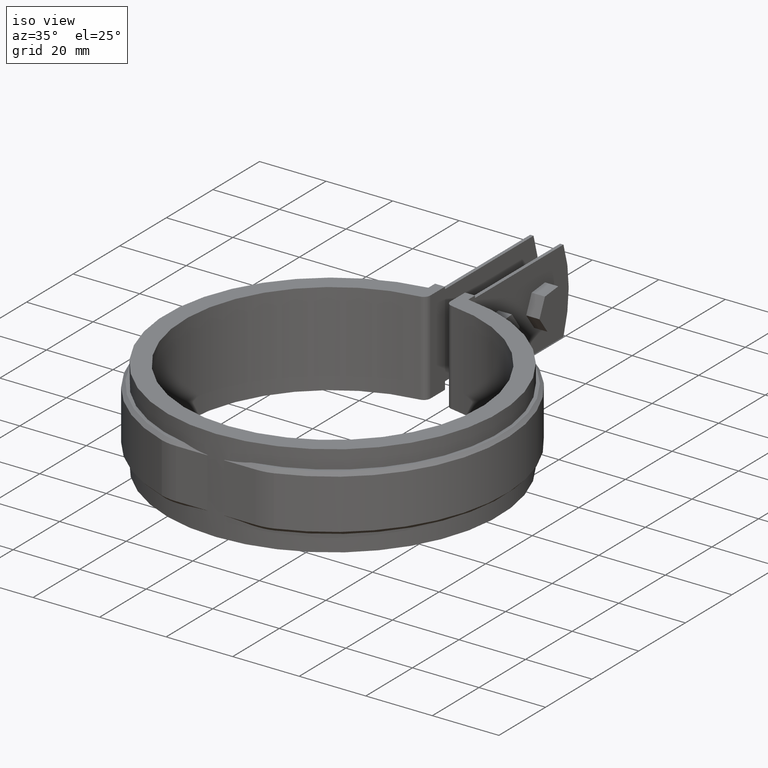
[diagram: clean part render]
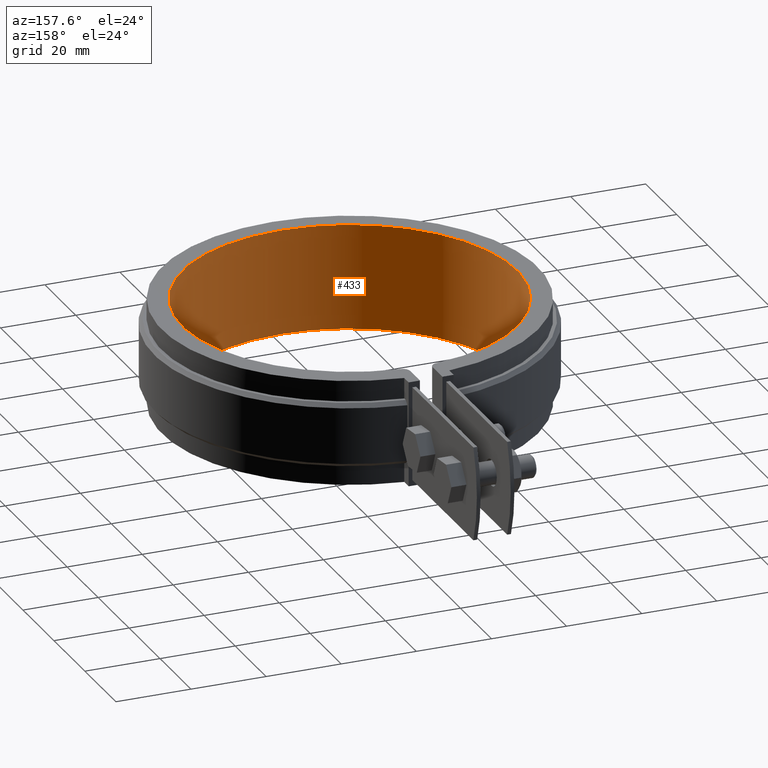
[diagram: tour spotlight — one face highlighted and labeled with its STEP entity id]
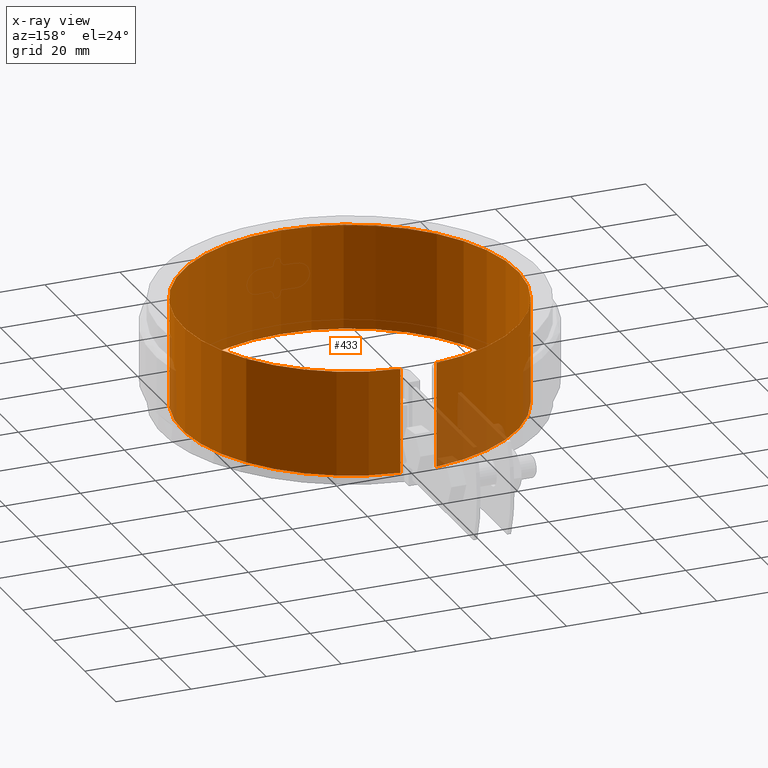
[diagram: x-ray of the same camera — body ghosted, this tour face saturated]
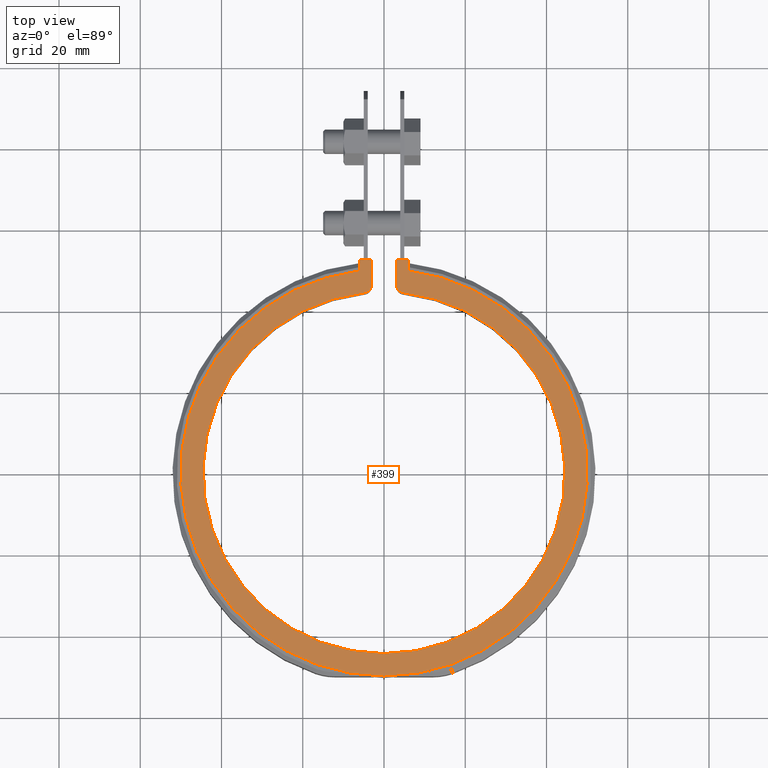
[diagram: tour spotlight — one face highlighted and labeled with its STEP entity id]
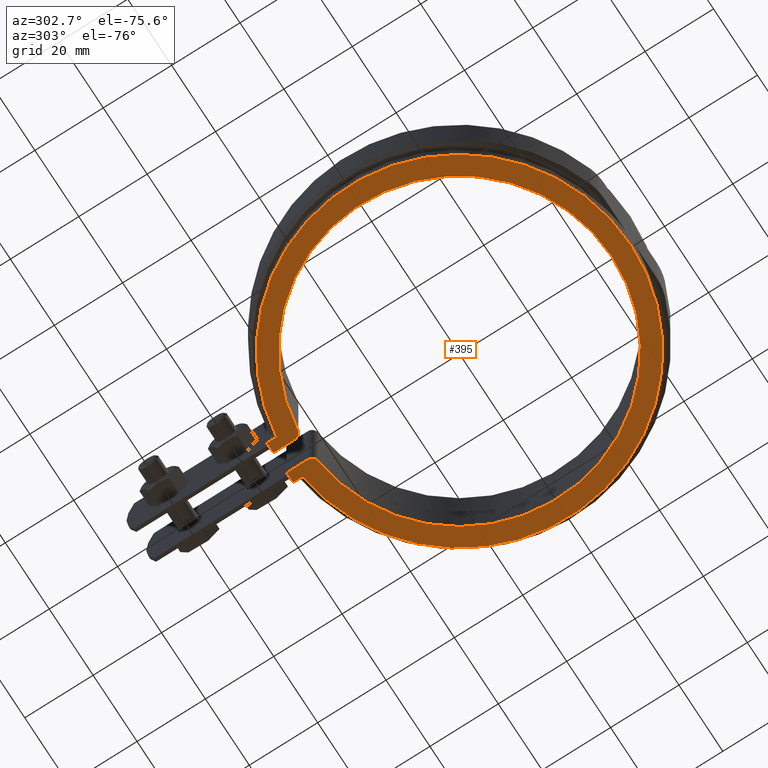
[diagram: tour spotlight — one face highlighted and labeled with its STEP entity id]
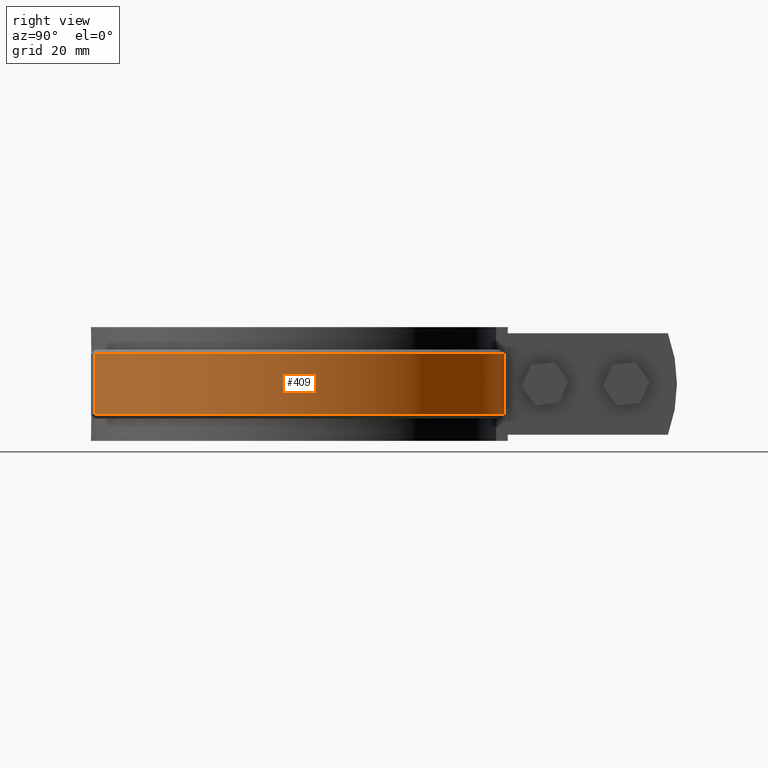
[diagram: tour spotlight — one face highlighted and labeled with its STEP entity id]
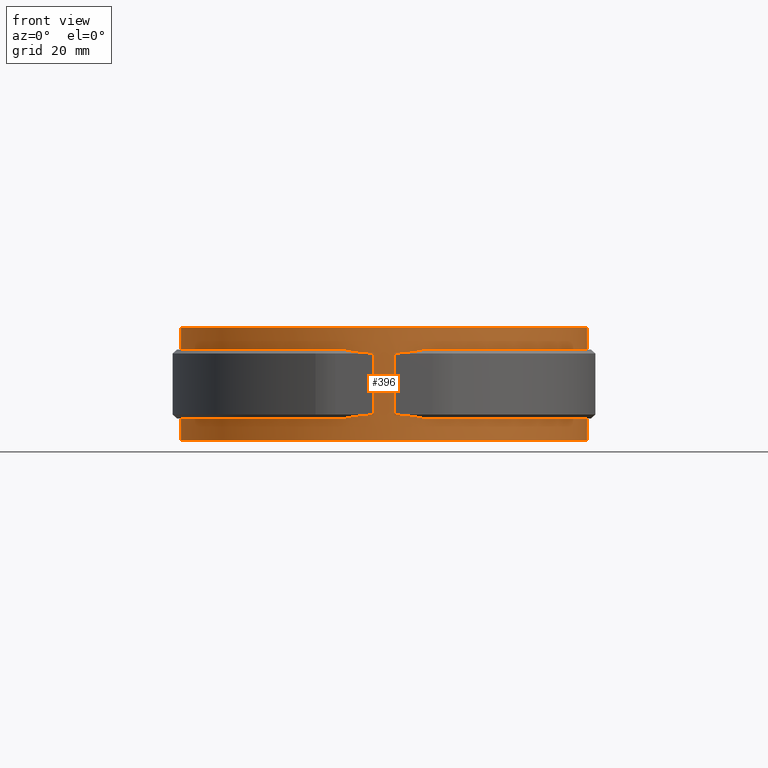
[diagram: tour spotlight — one face highlighted and labeled with its STEP entity id]
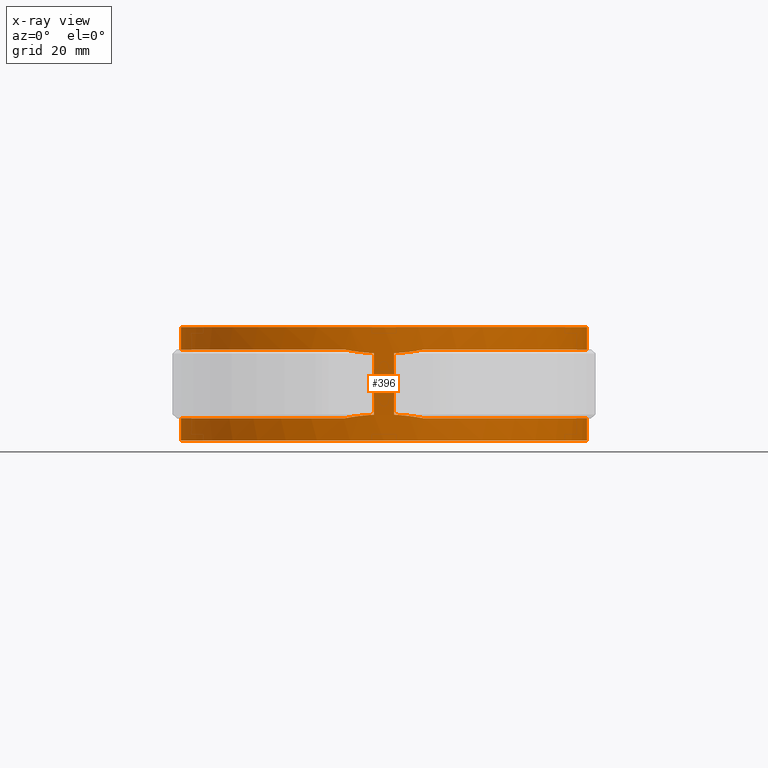
[diagram: x-ray of the same camera — body ghosted, this tour face saturated]
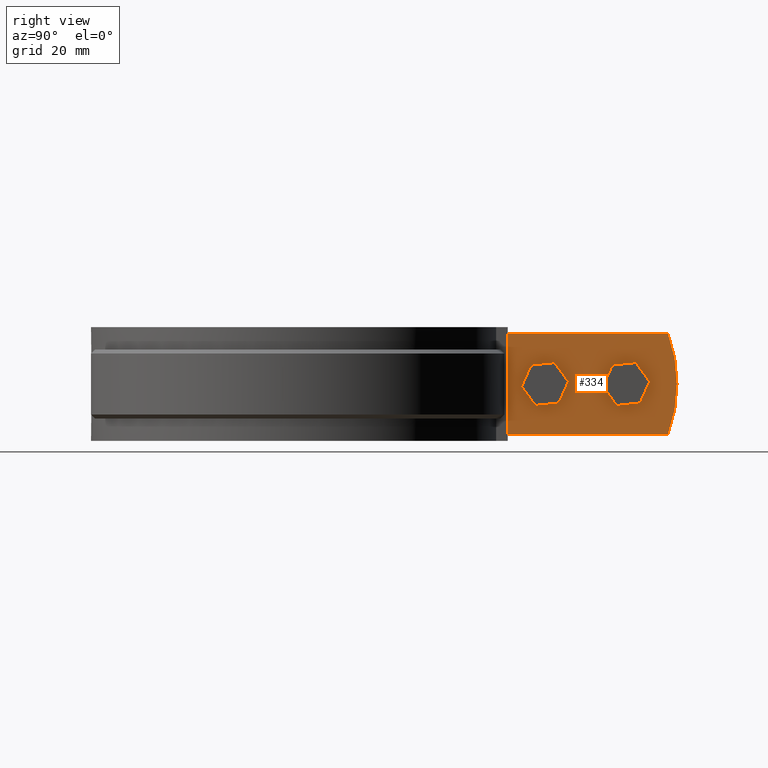
[diagram: tour spotlight — one face highlighted and labeled with its STEP entity id]
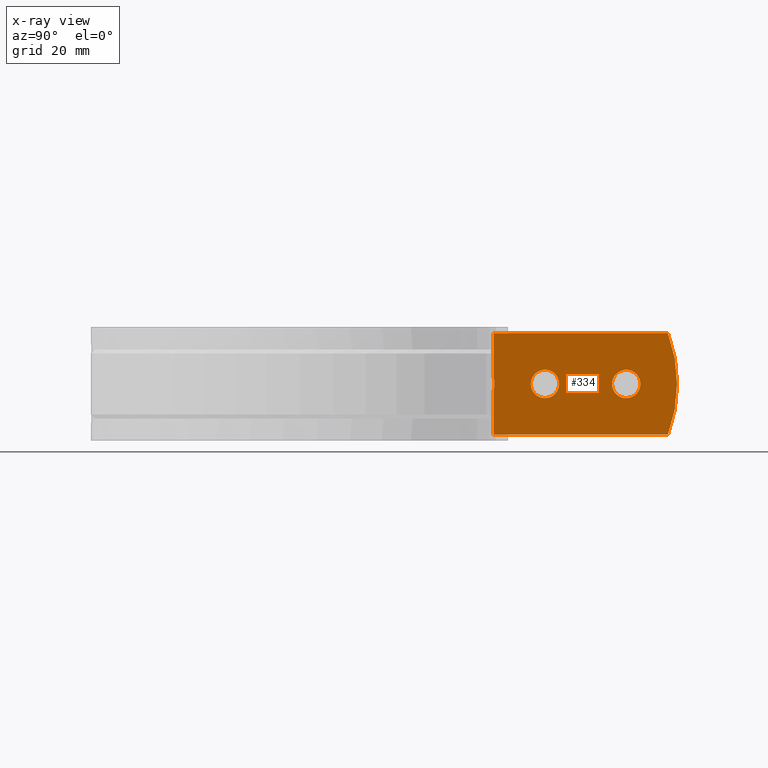
[diagram: x-ray of the same camera — body ghosted, this tour face saturated]
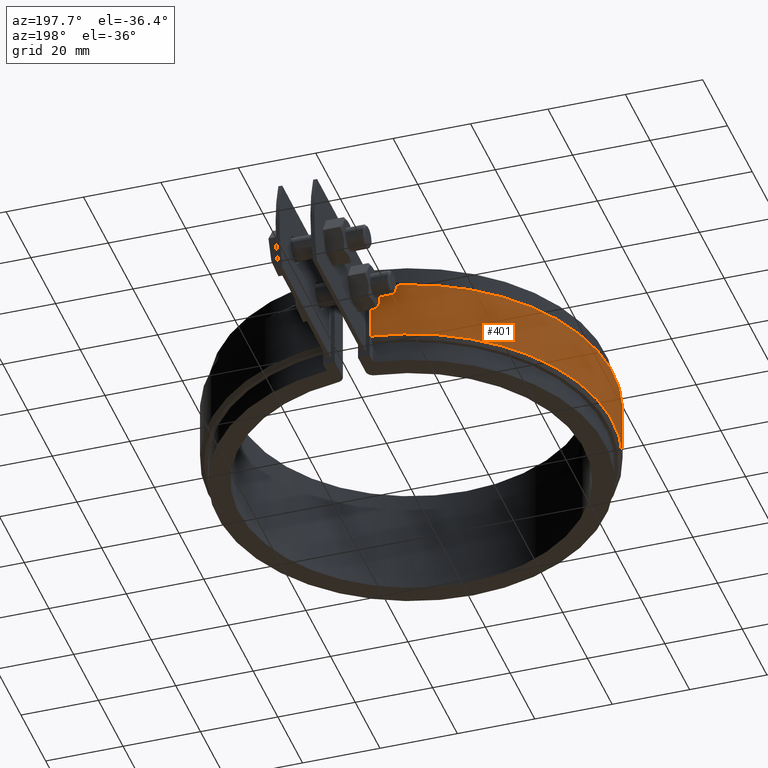
[diagram: tour spotlight — one face highlighted and labeled with its STEP entity id]
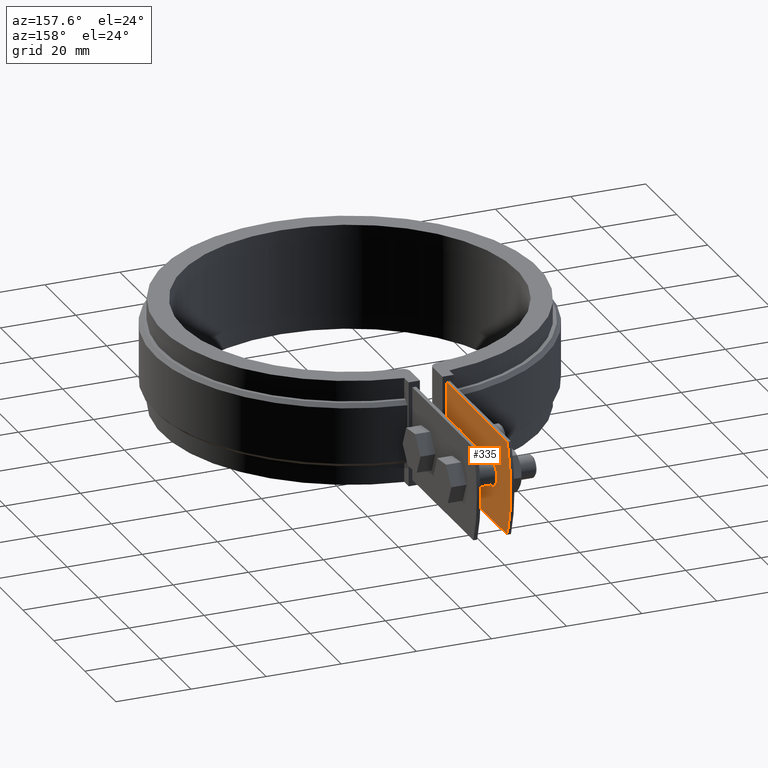
[diagram: tour spotlight — one face highlighted and labeled with its STEP entity id]
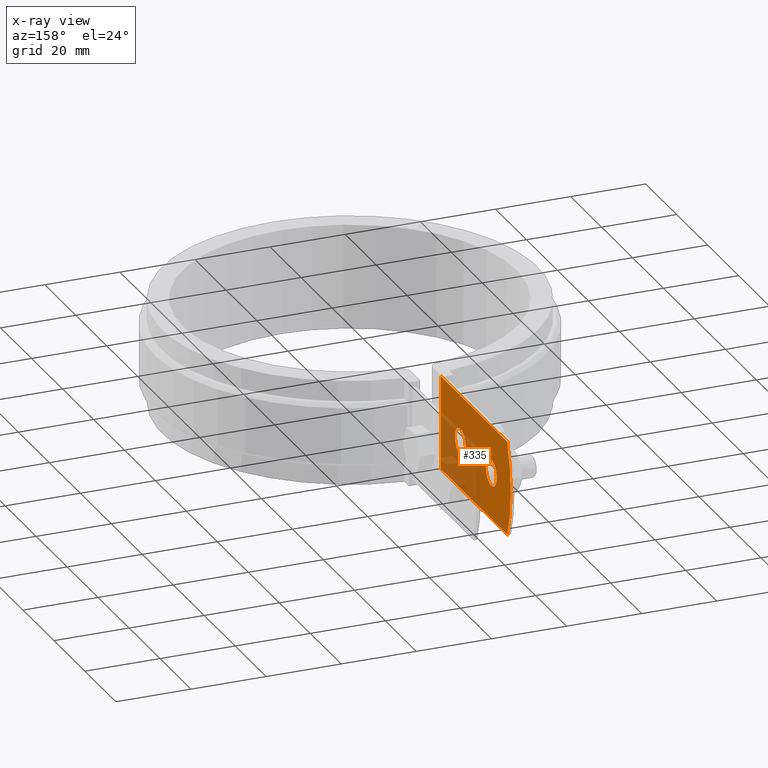
[diagram: x-ray of the same camera — body ghosted, this tour face saturated]
A machine part: a face-by-face anatomy tour. The part has 190 B-rep faces; the first image is the clean iso view, then the 8 largest visible faces are spotlighted one at a time (largest first), each with its STEP entity span.

Face 1 — auxiliary view, entity #433. An x-ray twin of the same camera follows (body ghosted, this face saturated) — the face is partly hidden behind the body. In plain terms, the highlighted cylindrical surface (partial cylindrical patch) has radius 44.55 mm, axis along (0, 0, 1).
Definition (entity closure, byte-faithful):
#433 = ADVANCED_FACE( '', ( #760 ), #761, .F. );
#760 = FACE_OUTER_BOUND( '', #1736, .T. );
#761 = CYLINDRICAL_SURFACE( '', #1737, 44.5500000000000 );
#1736 = EDGE_LOOP( '', ( #3486, #3487, #3488, #3489 ) );
#1737 = AXIS2_PLACEMENT_3D( '', #3490, #3491, #3492 );
#3486 = ORIENTED_EDGE( '', *, *, #4289, .T. );
#3487 = ORIENTED_EDGE( '', *, *, #4356, .F. );
#3488 = ORIENTED_EDGE( '', *, *, #4314, .F. );
#3489 = ORIENTED_EDGE( '', *, *, #4216, .T. );
#3490 = CARTESIAN_POINT( '', ( 8.67361737988404E-016, 1.38777878078145E-014, 14.0000000000000 ) );
#3491 = DIRECTION( '', ( 0.000000000000000, 0.000000000000000, 1.00000000000000 ) );
#3492 = DIRECTION( '', ( 0.107411385606873, 0.994214662053428, 0.000000000000000 ) );
#4216 = EDGE_CURVE( '', #4869, #4867, #4870, .T. );
#4289 = EDGE_CURVE( '', #4867, #4988, #4990, .T. );
#4314 = EDGE_CURVE( '', #4869, #5029, #5030, .T. );
#4356 = EDGE_CURVE( '', #5029, #4988, #5084, .T. );
#4867 = VERTEX_POINT( '', #7353 );
#4869 = VERTEX_POINT( '', #7355 );
#4870 = LINE( '', #7356, #7357 );
#4988 = VERTEX_POINT( '', #7644 );
#4990 = CIRCLE( '', #7646, 44.5500000000000 );
#5029 = VERTEX_POINT( '', #7708 );
#5030 = CIRCLE( '', #7709, 44.5500000000000 );
#5084 = LINE( '', #7790, #7791 );
#7353 = CARTESIAN_POINT( '', ( 4.78517722878625, 44.2922631944802, -14.0000000000000 ) );
#7355 = CARTESIAN_POINT( '', ( 4.78517722878625, 44.2922631944802, 14.0000000000000 ) );
#7356 = CARTESIAN_POINT( '', ( 4.78517722878625, 44.2922631944802, 14.0000000000000 ) );
#7357 = VECTOR( '', #8482, 1000.00000000000 );
#7644 = CARTESIAN_POINT( '', ( -4.78517722878559, 44.2922631944803, -14.0000000000000 ) );
#7646 = AXIS2_PLACEMENT_3D( '', #8554, #8555, #8556 );
#7708 = CARTESIAN_POINT( '', ( -4.78517722878559, 44.2922631944803, 14.0000000000000 ) );
#7709 = AXIS2_PLACEMENT_3D( '', #8592, #8593, #8594 );
#7790 = CARTESIAN_POINT( '', ( -4.78517722878559, 44.2922631944803, 14.0000000000000 ) );
#7791 = VECTOR( '', #8664, 1000.00000000000 );
#8482 = DIRECTION( '', ( 0.000000000000000, 0.000000000000000, -1.00000000000000 ) );
#8554 = CARTESIAN_POINT( '', ( 8.67361737988404E-016, 1.38777878078145E-014, -14.0000000000000 ) );
#8555 = DIRECTION( '', ( 0.000000000000000, 0.000000000000000, -1.00000000000000 ) );
#8556 = DIRECTION( '', ( 1.00000000000000, 1.38777878078145E-017, 0.000000000000000 ) );
#8592 = CARTESIAN_POINT( '', ( 8.67361737988404E-016, 1.38777878078145E-014, 14.0000000000000 ) );
#8593 = DIRECTION( '', ( 0.000000000000000, 0.000000000000000, -1.00000000000000 ) );
#8594 = DIRECTION( '', ( 1.00000000000000, 1.38777878078145E-017, 0.000000000000000 ) );
#8664 = DIRECTION( '', ( 0.000000000000000, 0.000000000000000, -1.00000000000000 ) );

Face 2 — top view, entity #399. In plain terms, the highlighted planar face has unit normal (0, 0, 1).
Definition (entity closure, byte-faithful):
#399 = ADVANCED_FACE( '', ( #692 ), #693, .T. );
#692 = FACE_OUTER_BOUND( '', #1664, .T. );
#693 = PLANE( '', #1665 );
#1664 = EDGE_LOOP( '', ( #3180, #3181, #3182, #3183, #3184, #3185, #3186, #3187, #3188, #3189 ) );
#1665 = AXIS2_PLACEMENT_3D( '', #3190, #3191, #3192 );
#3180 = ORIENTED_EDGE( '', *, *, #4312, .T. );
#3181 = ORIENTED_EDGE( '', *, *, #4279, .F. );
#3182 = ORIENTED_EDGE( '', *, *, #4311, .F. );
#3183 = ORIENTED_EDGE( '', *, *, #4294, .F. );
#3184 = ORIENTED_EDGE( '', *, *, #4302, .F. );
#3185 = ORIENTED_EDGE( '', *, *, #4272, .F. );
#3186 = ORIENTED_EDGE( '', *, *, #4313, .T. );
#3187 = ORIENTED_EDGE( '', *, *, #4217, .T. );
#3188 = ORIENTED_EDGE( '', *, *, #4314, .T. );
#3189 = ORIENTED_EDGE( '', *, *, #4315, .T. );
#3190 = CARTESIAN_POINT( '', ( -5.24038012570140, 48.1024067066612, 14.0000000000000 ) );
#3191 = DIRECTION( '', ( 0.000000000000000, 0.000000000000000, 1.00000000000000 ) );
#3192 = DIRECTION( '', ( -0.141271445606700, 0.989970897883465, 0.000000000000000 ) );
#4217 = EDGE_CURVE( '', #4871, #4869, #4872, .T. );
#4272 = EDGE_CURVE( '', #4958, #4961, #4962, .T. );
#4279 = EDGE_CURVE( '', #4972, #4973, #4974, .T. );
#4294 = EDGE_CURVE( '', #4996, #4998, #4999, .T. );
#4302 = EDGE_CURVE( '', #4961, #4996, #5011, .T. );
#4311 = EDGE_CURVE( '', #4998, #4972, #5025, .T. );
#4312 = EDGE_CURVE( '', #5026, #4973, #5027, .T. );
#4313 = EDGE_CURVE( '', #4958, #4871, #5028, .T. );
#4314 = EDGE_CURVE( '', #4869, #5029, #5030, .T. );
#4315 = EDGE_CURVE( '', #5029, #5026, #5031, .T. );
#4869 = VERTEX_POINT( '', #7355 );
#4871 = VERTEX_POINT( '', #7358 );
#4872 = CIRCLE( '', #7359, 2.00000000000000 );
#4958 = VERTEX_POINT( '', #7598 );
#4961 = VERTEX_POINT( '', #7602 );
#4962 = LINE( '', #7603, #7604 );
#4972 = VERTEX_POINT( '', #7620 );
#4973 = VERTEX_POINT( '', #7621 );
#4974 = LINE( '', #7622, #7623 );
#4996 = VERTEX_POINT( '', #7652 );
#4998 = VERTEX_POINT( '', #7655 );
#4999 = CIRCLE( '', #7656, 50.0500000000000 );
#5011 = LINE( '', #7672, #7673 );
#5025 = LINE( '', #7701, #7702 );
#5026 = VERTEX_POINT( '', #7703 );
#5027 = LINE( '', #7704, #7705 );
#5028 = LINE( '', #7706, #7707 );
#5029 = VERTEX_POINT( '', #7708 );
#5030 = CIRCLE( '', #7709, 44.5500000000000 );
#5031 = CIRCLE( '', #7710, 2.00000000000000 );
#7355 = CARTESIAN_POINT( '', ( 4.78517722878625, 44.2922631944802, 14.0000000000000 ) );
#7358 = CARTESIAN_POINT( '', ( 2.99999999999999, 46.2806925185870, 14.0000000000000 ) );
#7359 = AXIS2_PLACEMENT_3D( '', #8483, #8484, #8485 );
#7598 = CARTESIAN_POINT( '', ( 2.99999999999999, 52.5500000000000, 14.0000000000000 ) );
#7602 = CARTESIAN_POINT( '', ( 6.00000000000000, 52.5500000000000, 14.0000000000000 ) );
#7603 = CARTESIAN_POINT( '', ( 5.00000000000001, 52.5500000000000, 14.0000000000000 ) );
#7604 = VECTOR( '', #8533, 1000.00000000000 );
#7620 = CARTESIAN_POINT( '', ( -6.00000000000000, 52.5500000000000, 14.0000000000000 ) );
#7621 = CARTESIAN_POINT( '', ( -2.99999999999934, 52.5500000000000, 14.0000000000000 ) );
#7622 = CARTESIAN_POINT( '', ( -6.00000000000001, 52.5500000000000, 14.0000000000000 ) );
#7623 = VECTOR( '', #8540, 1000.00000000000 );
#7652 = CARTESIAN_POINT( '', ( 6.00000000000001, 49.6890581516696, 14.0000000000000 ) );
#7655 = CARTESIAN_POINT( '', ( -6.00000000000003, 49.6890581516696, 14.0000000000000 ) );
#7656 = AXIS2_PLACEMENT_3D( '', #8567, #8568, #8569 );
#7672 = CARTESIAN_POINT( '', ( 6.00000000000001, 52.5500000000000, 14.0000000000000 ) );
#7673 = VECTOR( '', #8583, 1000.00000000000 );
#7701 = CARTESIAN_POINT( '', ( -6.00000000000000, 49.6890581516696, 14.0000000000000 ) );
#7702 = VECTOR( '', #8589, 1000.00000000000 );
#7703 = CARTESIAN_POINT( '', ( -2.99999999999934, 46.2806925185871, 14.0000000000000 ) );
#7704 = CARTESIAN_POINT( '', ( -2.99999999999934, 46.2806925185871, 14.0000000000000 ) );
#7705 = VECTOR( '', #8590, 1000.00000000000 );
#7706 = CARTESIAN_POINT( '', ( 2.99999999999999, 52.5500000000000, 14.0000000000000 ) );
#7707 = VECTOR( '', #8591, 1000.00000000000 );
#7708 = CARTESIAN_POINT( '', ( -4.78517722878559, 44.2922631944803, 14.0000000000000 ) );
#7709 = AXIS2_PLACEMENT_3D( '', #8592, #8593, #8594 );
#7710 = AXIS2_PLACEMENT_3D( '', #8595, #8596, #8597 );
#8483 = CARTESIAN_POINT( '', ( 5.00000000000000, 46.2806925185871, 14.0000000000000 ) );
#8484 = DIRECTION( '', ( 0.000000000000000, 0.000000000000000, 1.00000000000000 ) );
#8485 = DIRECTION( '', ( -1.00000000000000, -1.16573417585641E-015, 0.000000000000000 ) );
#8533 = DIRECTION( '', ( 1.00000000000000, 2.77555756156289E-017, 0.000000000000000 ) );
#8540 = DIRECTION( '', ( 1.00000000000000, 2.77555756156289E-017, 0.000000000000000 ) );
#8567 = CARTESIAN_POINT( '', ( 1.73472347597681E-015, -1.38777878078145E-014, 14.0000000000000 ) );
#8568 = DIRECTION( '', ( 0.000000000000000, 0.000000000000000, -1.00000000000000 ) );
#8569 = DIRECTION( '', ( 1.00000000000000, 2.77555756156289E-017, 0.000000000000000 ) );
#8583 = DIRECTION( '', ( -5.55111512312578E-017, -1.00000000000000, 0.000000000000000 ) );
#8589 = DIRECTION( '', ( 5.55111512312578E-017, 1.00000000000000, 0.000000000000000 ) );
#8590 = DIRECTION( '', ( 4.16333634234434E-017, 1.00000000000000, 0.000000000000000 ) );
#8591 = DIRECTION( '', ( -4.16333634234434E-017, -1.00000000000000, 0.000000000000000 ) );
#8592 = CARTESIAN_POINT( '', ( 8.67361737988404E-016, 1.38777878078145E-014, 14.0000000000000 ) );
#8593 = DIRECTION( '', ( 0.000000000000000, 0.000000000000000, -1.00000000000000 ) );
#8594 = DIRECTION( '', ( 1.00000000000000, 1.38777878078145E-017, 0.000000000000000 ) );
#8595 = CARTESIAN_POINT( '', ( -4.99999999999933, 46.2806925185871, 14.0000000000000 ) );
#8596 = DIRECTION( '', ( 0.000000000000000, 0.000000000000000, 1.00000000000000 ) );
#8597 = DIRECTION( '', ( 1.00000000000000, 1.34614541735800E-015, 0.000000000000000 ) );

Face 3 — auxiliary view, entity #395. In plain terms, the highlighted planar face has unit normal (0, 0, 1).
Definition (entity closure, byte-faithful):
#395 = ADVANCED_FACE( '', ( #684 ), #685, .F. );
#684 = FACE_OUTER_BOUND( '', #1656, .T. );
#685 = PLANE( '', #1657 );
#1656 = EDGE_LOOP( '', ( #3122, #3123, #3124, #3125, #3126, #3127, #3128, #3129, #3130, #3131 ) );
#1657 = AXIS2_PLACEMENT_3D( '', #3132, #3133, #3134 );
#3122 = ORIENTED_EDGE( '', *, *, #4283, .F. );
#3123 = ORIENTED_EDGE( '', *, *, #4274, .T. );
#3124 = ORIENTED_EDGE( '', *, *, #4284, .T. );
#3125 = ORIENTED_EDGE( '', *, *, #4285, .T. );
#3126 = ORIENTED_EDGE( '', *, *, #4286, .T. );
#3127 = ORIENTED_EDGE( '', *, *, #4281, .T. );
#3128 = ORIENTED_EDGE( '', *, *, #4287, .F. );
#3129 = ORIENTED_EDGE( '', *, *, #4288, .F. );
#3130 = ORIENTED_EDGE( '', *, *, #4289, .F. );
#3131 = ORIENTED_EDGE( '', *, *, #4215, .F. );
#3132 = CARTESIAN_POINT( '', ( -5.24038012570140, 48.1024067066612, -14.0000000000000 ) );
#3133 = DIRECTION( '', ( 0.000000000000000, 0.000000000000000, 1.00000000000000 ) );
#3134 = DIRECTION( '', ( -0.141271445606700, 0.989970897883465, 0.000000000000000 ) );
#4215 = EDGE_CURVE( '', #4866, #4867, #4868, .T. );
#4274 = EDGE_CURVE( '', #4959, #4963, #4965, .T. );
#4281 = EDGE_CURVE( '', #4977, #4975, #4978, .T. );
#4283 = EDGE_CURVE( '', #4959, #4866, #4980, .T. );
#4284 = EDGE_CURVE( '', #4963, #4981, #4982, .T. );
#4285 = EDGE_CURVE( '', #4981, #4983, #4984, .T. );
#4286 = EDGE_CURVE( '', #4983, #4977, #4985, .T. );
#4287 = EDGE_CURVE( '', #4986, #4975, #4987, .T. );
#4288 = EDGE_CURVE( '', #4988, #4986, #4989, .T. );
#4289 = EDGE_CURVE( '', #4867, #4988, #4990, .T. );
#4866 = VERTEX_POINT( '', #7352 );
#4867 = VERTEX_POINT( '', #7353 );
#4868 = CIRCLE( '', #7354, 2.00000000000000 );
#4959 = VERTEX_POINT( '', #7599 );
#4963 = VERTEX_POINT( '', #7605 );
#4965 = LINE( '', #7608, #7609 );
#4975 = VERTEX_POINT( '', #7624 );
#4977 = VERTEX_POINT( '', #7627 );
#4978 = LINE( '', #7628, #7629 );
#4980 = LINE( '', #7632, #7633 );
#4981 = VERTEX_POINT( '', #7634 );
#4982 = LINE( '', #7635, #7636 );
#4983 = VERTEX_POINT( '', #7637 );
#4984 = CIRCLE( '', #7638, 50.0500000000000 );
#4985 = LINE( '', #7639, #7640 );
#4986 = VERTEX_POINT( '', #7641 );
#4987 = LINE( '', #7642, #7643 );
#4988 = VERTEX_POINT( '', #7644 );
#4989 = CIRCLE( '', #7645, 2.00000000000000 );
#4990 = CIRCLE( '', #7646, 44.5500000000000 );
#7352 = CARTESIAN_POINT( '', ( 2.99999999999999, 46.2806925185870, -14.0000000000000 ) );
#7353 = CARTESIAN_POINT( '', ( 4.78517722878625, 44.2922631944802, -14.0000000000000 ) );
#7354 = AXIS2_PLACEMENT_3D( '', #8479, #8480, #8481 );
#7599 = CARTESIAN_POINT( '', ( 2.99999999999999, 52.5500000000000, -14.0000000000000 ) );
#7605 = CARTESIAN_POINT( '', ( 6.00000000000000, 52.5500000000000, -14.0000000000000 ) );
#7608 = CARTESIAN_POINT( '', ( 5.00000000000001, 52.5500000000000, -14.0000000000000 ) );
#7609 = VECTOR( '', #8535, 1000.00000000000 );
#7624 = CARTESIAN_POINT( '', ( -2.99999999999934, 52.5500000000000, -14.0000000000000 ) );
#7627 = CARTESIAN_POINT( '', ( -6.00000000000000, 52.5500000000000, -14.0000000000000 ) );
#7628 = CARTESIAN_POINT( '', ( -6.00000000000001, 52.5500000000000, -14.0000000000000 ) );
#7629 = VECTOR( '', #8542, 1000.00000000000 );
#7632 = CARTESIAN_POINT( '', ( 2.99999999999999, 52.5500000000000, -14.0000000000000 ) );
#7633 = VECTOR( '', #8544, 1000.00000000000 );
#7634 = CARTESIAN_POINT( '', ( 6.00000000000001, 49.6890581516696, -14.0000000000000 ) );
#7635 = CARTESIAN_POINT( '', ( 6.00000000000001, 52.5500000000000, -14.0000000000000 ) );
#7636 = VECTOR( '', #8545, 1000.00000000000 );
#7637 = CARTESIAN_POINT( '', ( -6.00000000000003, 49.6890581516696, -14.0000000000000 ) );
#7638 = AXIS2_PLACEMENT_3D( '', #8546, #8547, #8548 );
#7639 = CARTESIAN_POINT( '', ( -6.00000000000000, 49.6890581516696, -14.0000000000000 ) );
#7640 = VECTOR( '', #8549, 1000.00000000000 );
#7641 = CARTESIAN_POINT( '', ( -2.99999999999934, 46.2806925185871, -14.0000000000000 ) );
#7642 = CARTESIAN_POINT( '', ( -2.99999999999934, 46.2806925185871, -14.0000000000000 ) );
#7643 = VECTOR( '', #8550, 1000.00000000000 );
#7644 = CARTESIAN_POINT( '', ( -4.78517722878559, 44.2922631944803, -14.0000000000000 ) );
#7645 = AXIS2_PLACEMENT_3D( '', #8551, #8552, #8553 );
#7646 = AXIS2_PLACEMENT_3D( '', #8554, #8555, #8556 );
#8479 = CARTESIAN_POINT( '', ( 5.00000000000000, 46.2806925185871, -14.0000000000000 ) );
#8480 = DIRECTION( '', ( 0.000000000000000, 0.000000000000000, 1.00000000000000 ) );
#8481 = DIRECTION( '', ( -1.00000000000000, -1.16573417585641E-015, 0.000000000000000 ) );
#8535 = DIRECTION( '', ( 1.00000000000000, 2.77555756156289E-017, 0.000000000000000 ) );
#8542 = DIRECTION( '', ( 1.00000000000000, 2.77555756156289E-017, 0.000000000000000 ) );
#8544 = DIRECTION( '', ( -4.16333634234434E-017, -1.00000000000000, 0.000000000000000 ) );
#8545 = DIRECTION( '', ( -5.55111512312578E-017, -1.00000000000000, 0.000000000000000 ) );
#8546 = CARTESIAN_POINT( '', ( 1.73472347597681E-015, -1.38777878078145E-014, -14.0000000000000 ) );
#8547 = DIRECTION( '', ( 0.000000000000000, 0.000000000000000, -1.00000000000000 ) );
#8548 = DIRECTION( '', ( 1.00000000000000, 2.77555756156289E-017, 0.000000000000000 ) );
#8549 = DIRECTION( '', ( 5.55111512312578E-017, 1.00000000000000, 0.000000000000000 ) );
#8550 = DIRECTION( '', ( 4.16333634234434E-017, 1.00000000000000, 0.000000000000000 ) );
#8551 = CARTESIAN_POINT( '', ( -4.99999999999933, 46.2806925185871, -14.0000000000000 ) );
#8552 = DIRECTION( '', ( 0.000000000000000, 0.000000000000000, 1.00000000000000 ) );
#8553 = DIRECTION( '', ( 1.00000000000000, 1.34614541735800E-015, 0.000000000000000 ) );
#8554 = CARTESIAN_POINT( '', ( 8.67361737988404E-016, 1.38777878078145E-014, -14.0000000000000 ) );
#8555 = DIRECTION( '', ( 0.000000000000000, 0.000000000000000, -1.00000000000000 ) );
#8556 = DIRECTION( '', ( 1.00000000000000, 1.38777878078145E-017, 0.000000000000000 ) );

Face 4 — right view, entity #409. In plain terms, the highlighted cylindrical surface (partial cylindrical patch) has radius 52.05 mm, axis along (0, 0, -1).
Definition (entity closure, byte-faithful):
#409 = ADVANCED_FACE( '', ( #712 ), #713, .T. );
#712 = FACE_OUTER_BOUND( '', #1684, .T. );
#713 = CYLINDRICAL_SURFACE( '', #1685, 52.0500000000000 );
#1684 = EDGE_LOOP( '', ( #3259, #3260, #3261, #3262 ) );
#1685 = AXIS2_PLACEMENT_3D( '', #3263, #3264, #3265 );
#3259 = ORIENTED_EDGE( '', *, *, #4304, .F. );
#3260 = ORIENTED_EDGE( '', *, *, #4261, .T. );
#3261 = ORIENTED_EDGE( '', *, *, #4333, .F. );
#3262 = ORIENTED_EDGE( '', *, *, #4338, .T. );
#3263 = CARTESIAN_POINT( '', ( 0.000000000000000, -1.38777878078145E-014, -8.50000000000000 ) );
#3264 = DIRECTION( '', ( 0.000000000000000, 0.000000000000000, -1.00000000000000 ) );
#3265 = DIRECTION( '', ( 0.0960614793467818, 0.995375402642494, 0.000000000000000 ) );
#4261 = EDGE_CURVE( '', #4933, #4937, #4939, .F. );
#4304 = EDGE_CURVE( '', #4933, #5013, #5014, .F. );
#4333 = EDGE_CURVE( '', #5058, #4937, #5059, .T. );
#4338 = EDGE_CURVE( '', #5058, #5013, #5065, .T. );
#4933 = VERTEX_POINT( '', #7563 );
#4937 = VERTEX_POINT( '', #7570 );
#4939 = CIRCLE( '', #7573, 52.0500000000000 );
#5013 = VERTEX_POINT( '', #7676 );
#5014 = LINE( '', #7677, #7678 );
#5058 = VERTEX_POINT( '', #7746 );
#5059 = LINE( '', #7747, #7748 );
#5065 = CIRCLE( '', #7755, 52.0500000000000 );
#7563 = CARTESIAN_POINT( '', ( 6.00000000000001, 51.7030221553828, 7.50000000000001 ) );
#7570 = CARTESIAN_POINT( '', ( 16.8700026854753, -49.2402834008097, 7.50000000000001 ) );
#7573 = AXIS2_PLACEMENT_3D( '', #8514, #8515, #8516 );
#7676 = CARTESIAN_POINT( '', ( 6.00000000000001, 51.7030221553828, -7.50000000000000 ) );
#7677 = CARTESIAN_POINT( '', ( 6.00000000000001, 51.7030221553828, -8.50000000000000 ) );
#7678 = VECTOR( '', #8585, 1000.00000000000 );
#7746 = CARTESIAN_POINT( '', ( 16.8700026854753, -49.2402834008097, -7.50000000000000 ) );
#7747 = CARTESIAN_POINT( '', ( 16.8700026854753, -49.2402834008097, -8.50000000000000 ) );
#7748 = VECTOR( '', #8631, 1000.00000000000 );
#7755 = AXIS2_PLACEMENT_3D( '', #8642, #8643, #8644 );
#8514 = CARTESIAN_POINT( '', ( 0.000000000000000, -1.38777878078145E-014, 7.50000000000000 ) );
#8515 = DIRECTION( '', ( 0.000000000000000, 0.000000000000000, 1.00000000000000 ) );
#8516 = DIRECTION( '', ( 1.00000000000000, 0.000000000000000, 0.000000000000000 ) );
#8585 = DIRECTION( '', ( 0.000000000000000, 0.000000000000000, 1.00000000000000 ) );
#8631 = DIRECTION( '', ( 0.000000000000000, 0.000000000000000, 1.00000000000000 ) );
#8642 = CARTESIAN_POINT( '', ( 0.000000000000000, -1.38777878078145E-014, -7.50000000000000 ) );
#8643 = DIRECTION( '', ( 0.000000000000000, 0.000000000000000, 1.00000000000000 ) );
#8644 = DIRECTION( '', ( 1.00000000000000, 0.000000000000000, 0.000000000000000 ) );

Face 5 — front view, entity #396. An x-ray twin of the same camera follows (body ghosted, this face saturated) — the face is partly hidden behind the body. In plain terms, the highlighted cylindrical surface (partial cylindrical patch) has radius 50.05 mm, axis along (0, 0, -1).
Definition (entity closure, byte-faithful):
#396 = ADVANCED_FACE( '', ( #686 ), #687, .T. );
#686 = FACE_OUTER_BOUND( '', #1658, .T. );
#687 = CYLINDRICAL_SURFACE( '', #1659, 50.0500000000000 );
#1658 = EDGE_LOOP( '', ( #3135, #3136, #3137, #3138, #3139, #3140, #3141, #3142, #3143, #3144, #3145, #3146, #3147, #3148, #3149, #3150 ) );
#1659 = AXIS2_PLACEMENT_3D( '', #3151, #3152, #3153 );
#3135 = ORIENTED_EDGE( '', *, *, #4268, .F. );
#3136 = ORIENTED_EDGE( '', *, *, #4290, .T. );
#3137 = ORIENTED_EDGE( '', *, *, #4264, .T. );
#3138 = ORIENTED_EDGE( '', *, *, #4291, .T. );
#3139 = ORIENTED_EDGE( '', *, *, #4292, .T. );
#3140 = ORIENTED_EDGE( '', *, *, #4293, .T. );
#3141 = ORIENTED_EDGE( '', *, *, #4294, .T. );
#3142 = ORIENTED_EDGE( '', *, *, #4295, .F. );
#3143 = ORIENTED_EDGE( '', *, *, #4296, .T. );
#3144 = ORIENTED_EDGE( '', *, *, #4297, .T. );
#3145 = ORIENTED_EDGE( '', *, *, #4298, .T. );
#3146 = ORIENTED_EDGE( '', *, *, #4255, .T. );
#3147 = ORIENTED_EDGE( '', *, *, #4299, .F. );
#3148 = ORIENTED_EDGE( '', *, *, #4300, .F. );
#3149 = ORIENTED_EDGE( '', *, *, #4285, .F. );
#3150 = ORIENTED_EDGE( '', *, *, #4301, .T. );
#3151 = CARTESIAN_POINT( '', ( 1.73472347597681E-015, -1.38777878078145E-014, -14.0000000000000 ) );
#3152 = DIRECTION( '', ( 0.000000000000000, 0.000000000000000, -1.00000000000000 ) );
#3153 = DIRECTION( '', ( -0.141271445606700, 0.989970897883465, 0.000000000000000 ) );
#4255 = EDGE_CURVE( '', #4927, #4925, #4928, .T. );
#4264 = EDGE_CURVE( '', #4945, #4943, #4946, .T. );
#4268 = EDGE_CURVE( '', #4951, #4953, #4954, .T. );
#4285 = EDGE_CURVE( '', #4981, #4983, #4984, .T. );
#4290 = EDGE_CURVE( '', #4951, #4945, #4991, .T. );
#4291 = EDGE_CURVE( '', #4943, #4992, #4993, .F. );
#4292 = EDGE_CURVE( '', #4992, #4994, #4995, .T. );
#4293 = EDGE_CURVE( '', #4994, #4996, #4997, .T. );
#4294 = EDGE_CURVE( '', #4996, #4998, #4999, .T. );
#4295 = EDGE_CURVE( '', #5000, #4998, #5001, .T. );
#4296 = EDGE_CURVE( '', #5000, #5002, #5003, .T. );
#4297 = EDGE_CURVE( '', #5002, #5004, #5005, .F. );
#4298 = EDGE_CURVE( '', #5004, #4927, #5006, .F. );
#4299 = EDGE_CURVE( '', #5007, #4925, #5008, .T. );
#4300 = EDGE_CURVE( '', #4983, #5007, #5009, .T. );
#4301 = EDGE_CURVE( '', #4981, #4953, #5010, .T. );
#4925 = VERTEX_POINT( '', #7552 );
#4927 = VERTEX_POINT( '', #7555 );
#4928 = ELLIPSE( '', #7556, 70.7813887967734, 50.0500000000000 );
#4943 = VERTEX_POINT( '', #7578 );
#4945 = VERTEX_POINT( '', #7581 );
#4946 = LINE( '', #7582, #7583 );
#4951 = VERTEX_POINT( '', #7589 );
#4953 = VERTEX_POINT( '', #7592 );
#4954 = CIRCLE( '', #7593, 50.0500000000000 );
#4981 = VERTEX_POINT( '', #7634 );
#4983 = VERTEX_POINT( '', #7637 );
#4984 = CIRCLE( '', #7638, 50.0500000000000 );
#4991 = ELLIPSE( '', #7647, 70.7813887967734, 50.0500000000000 );
#4992 = VERTEX_POINT( '', #7648 );
#4993 = ELLIPSE( '', #7649, 70.7813887967734, 50.0500000000000 );
#4994 = VERTEX_POINT( '', #7650 );
#4995 = CIRCLE( '', #7651, 50.0500000000000 );
#4996 = VERTEX_POINT( '', #7652 );
#4997 = LINE( '', #7653, #7654 );
#4998 = VERTEX_POINT( '', #7655 );
#4999 = CIRCLE( '', #7656, 50.0500000000000 );
#5000 = VERTEX_POINT( '', #7657 );
#5001 = LINE( '', #7658, #7659 );
#5002 = VERTEX_POINT( '', #7660 );
#5003 = CIRCLE( '', #7661, 50.0500000000000 );
#5004 = VERTEX_POINT( '', #7662 );
#5005 = ELLIPSE( '', #7663, 70.7813887967734, 50.0500000000000 );
#5006 = LINE( '', #7664, #7665 );
#5007 = VERTEX_POINT( '', #7666 );
#5008 = CIRCLE( '', #7667, 50.0500000000000 );
#5009 = LINE( '', #7668, #7669 );
#5010 = LINE( '', #7670, #7671 );
#7552 = CARTESIAN_POINT( '', ( -9.95489829179598, -49.0500000000000, -8.50000000000000 ) );
#7555 = CARTESIAN_POINT( '', ( -2.50000000000000, -49.9875234433554, -7.56247655664464 ) );
#7556 = AXIS2_PLACEMENT_3D( '', #8505, #8506, #8507 );
#7578 = CARTESIAN_POINT( '', ( 2.50000000000000, -49.9875234433554, 7.56247655664463 ) );
#7581 = CARTESIAN_POINT( '', ( 2.50000000000000, -49.9875234433554, -7.56247655664464 ) );
#7582 = CARTESIAN_POINT( '', ( 2.50000000000000, -49.9875234433554, -14.0000000000000 ) );
#7583 = VECTOR( '', #8519, 1000.00000000000 );
#7589 = CARTESIAN_POINT( '', ( 9.95489829179598, -49.0500000000000, -8.50000000000000 ) );
#7592 = CARTESIAN_POINT( '', ( 6.00000000000001, 49.6890581516696, -8.50000000000000 ) );
#7593 = AXIS2_PLACEMENT_3D( '', #8525, #8526, #8527 );
#7634 = CARTESIAN_POINT( '', ( 6.00000000000001, 49.6890581516696, -14.0000000000000 ) );
#7637 = CARTESIAN_POINT( '', ( -6.00000000000003, 49.6890581516696, -14.0000000000000 ) );
#7638 = AXIS2_PLACEMENT_3D( '', #8546, #8547, #8548 );
#7647 = AXIS2_PLACEMENT_3D( '', #8557, #8558, #8559 );
#7648 = CARTESIAN_POINT( '', ( 9.95489829179598, -49.0500000000000, 8.49999999999999 ) );
#7649 = AXIS2_PLACEMENT_3D( '', #8560, #8561, #8562 );
#7650 = CARTESIAN_POINT( '', ( 6.00000000000001, 49.6890581516696, 8.49999999999999 ) );
#7651 = AXIS2_PLACEMENT_3D( '', #8563, #8564, #8565 );
#7652 = CARTESIAN_POINT( '', ( 6.00000000000001, 49.6890581516696, 14.0000000000000 ) );
#7653 = CARTESIAN_POINT( '', ( 6.00000000000001, 49.6890581516696, -14.0000000000000 ) );
#7654 = VECTOR( '', #8566, 1000.00000000000 );
#7655 = CARTESIAN_POINT( '', ( -6.00000000000003, 49.6890581516696, 14.0000000000000 ) );
#7656 = AXIS2_PLACEMENT_3D( '', #8567, #8568, #8569 );
#7657 = CARTESIAN_POINT( '', ( -6.00000000000003, 49.6890581516696, 8.50000000000000 ) );
#7658 = CARTESIAN_POINT( '', ( -6.00000000000003, 49.6890581516696, -14.0000000000000 ) );
#7659 = VECTOR( '', #8570, 1000.00000000000 );
#7660 = CARTESIAN_POINT( '', ( -9.95489829179598, -49.0500000000000, 8.49999999999999 ) );
#7661 = AXIS2_PLACEMENT_3D( '', #8571, #8572, #8573 );
#7662 = CARTESIAN_POINT( '', ( -2.50000000000000, -49.9875234433554, 7.56247655664463 ) );
#7663 = AXIS2_PLACEMENT_3D( '', #8574, #8575, #8576 );
#7664 = CARTESIAN_POINT( '', ( -2.50000000000000, -49.9875234433554, -14.0000000000000 ) );
#7665 = VECTOR( '', #8577, 1000.00000000000 );
#7666 = CARTESIAN_POINT( '', ( -6.00000000000000, 49.6890581516696, -8.50000000000000 ) );
#7667 = AXIS2_PLACEMENT_3D( '', #8578, #8579, #8580 );
#7668 = CARTESIAN_POINT( '', ( -6.00000000000003, 49.6890581516696, -14.0000000000000 ) );
#7669 = VECTOR( '', #8581, 1000.00000000000 );
#7670 = CARTESIAN_POINT( '', ( 6.00000000000001, 49.6890581516696, -14.0000000000000 ) );
#7671 = VECTOR( '', #8582, 1000.00000000000 );
#8505 = CARTESIAN_POINT( '', ( 1.73472347597681E-015, -1.38777878078145E-014, -57.5500000000000 ) );
#8506 = DIRECTION( '', ( -9.81307786677359E-018, -0.707106781186547, -0.707106781186548 ) );
#8507 = DIRECTION( '', ( -9.81307786677360E-018, -0.707106781186548, 0.707106781186547 ) );
#8519 = DIRECTION( '', ( 0.000000000000000, 0.000000000000000, 1.00000000000000 ) );
#8525 = CARTESIAN_POINT( '', ( 1.73472347597681E-015, -1.38777878078145E-014, -8.50000000000000 ) );
#8526 = DIRECTION( '', ( 0.000000000000000, 0.000000000000000, 1.00000000000000 ) );
#8527 = DIRECTION( '', ( 1.00000000000000, 0.000000000000000, 0.000000000000000 ) );
#8546 = CARTESIAN_POINT( '', ( 1.73472347597681E-015, -1.38777878078145E-014, -14.0000000000000 ) );
#8547 = DIRECTION( '', ( 0.000000000000000, 0.000000000000000, -1.00000000000000 ) );
#8548 = DIRECTION( '', ( 1.00000000000000, 2.77555756156289E-017, 0.000000000000000 ) );
#8557 = CARTESIAN_POINT( '', ( 1.73472347597681E-015, -1.38777878078145E-014, -57.5500000000000 ) );
#8558 = DIRECTION( '', ( 9.81307786677359E-018, -0.707106781186547, -0.707106781186548 ) );
#8559 = DIRECTION( '', ( 9.81307786677360E-018, -0.707106781186548, 0.707106781186547 ) );
#8560 = CARTESIAN_POINT( '', ( 1.73472347597681E-015, -1.38777878078145E-014, 57.5500000000000 ) );
#8561 = DIRECTION( '', ( -9.81307786677359E-018, 0.707106781186547, -0.707106781186548 ) );
#8562 = DIRECTION( '', ( -9.81307786677360E-018, 0.707106781186548, 0.707106781186547 ) );
#8563 = CARTESIAN_POINT( '', ( 1.73472347597681E-015, -1.38777878078145E-014, 8.49999999999999 ) );
#8564 = DIRECTION( '', ( 0.000000000000000, 0.000000000000000, 1.00000000000000 ) );
#8565 = DIRECTION( '', ( 1.00000000000000, 0.000000000000000, 0.000000000000000 ) );
#8566 = DIRECTION( '', ( 0.000000000000000, 0.000000000000000, 1.00000000000000 ) );
#8567 = CARTESIAN_POINT( '', ( 1.73472347597681E-015, -1.38777878078145E-014, 14.0000000000000 ) );
#8568 = DIRECTION( '', ( 0.000000000000000, 0.000000000000000, -1.00000000000000 ) );
#8569 = DIRECTION( '', ( 1.00000000000000, 2.77555756156289E-017, 0.000000000000000 ) );
#8570 = DIRECTION( '', ( 0.000000000000000, 0.000000000000000, 1.00000000000000 ) );
#8571 = CARTESIAN_POINT( '', ( 1.73472347597681E-015, -1.38777878078145E-014, 8.49999999999999 ) );
#8572 = DIRECTION( '', ( 0.000000000000000, 0.000000000000000, 1.00000000000000 ) );
#8573 = DIRECTION( '', ( 1.00000000000000, 0.000000000000000, 0.000000000000000 ) );
#8574 = CARTESIAN_POINT( '', ( 1.73472347597681E-015, -1.38777878078145E-014, 57.5500000000000 ) );
#8575 = DIRECTION( '', ( 9.81307786677359E-018, 0.707106781186547, -0.707106781186548 ) );
#8576 = DIRECTION( '', ( 9.81307786677360E-018, 0.707106781186548, 0.707106781186547 ) );
#8577 = DIRECTION( '', ( 0.000000000000000, 0.000000000000000, 1.00000000000000 ) );
#8578 = CARTESIAN_POINT( '', ( 1.73472347597681E-015, -1.38777878078145E-014, -8.50000000000000 ) );
#8579 = DIRECTION( '', ( 0.000000000000000, 0.000000000000000, 1.00000000000000 ) );
#8580 = DIRECTION( '', ( 1.00000000000000, 0.000000000000000, 0.000000000000000 ) );
#8581 = DIRECTION( '', ( 0.000000000000000, 0.000000000000000, 1.00000000000000 ) );
#8582 = DIRECTION( '', ( 0.000000000000000, 0.000000000000000, 1.00000000000000 ) );

Face 6 — right view, entity #334. An x-ray twin of the same camera follows (body ghosted, this face saturated) — the face is partly hidden behind the body. In plain terms, the highlighted planar face has unit normal (1, 0, 0).
Definition (entity closure, byte-faithful):
#334 = ADVANCED_FACE( '', ( #550, #551, #552 ), #553, .T. );
#550 = FACE_OUTER_BOUND( '', #1101, .T. );
#551 = FACE_BOUND( '', #1102, .T. );
#552 = FACE_BOUND( '', #1103, .T. );
#553 = PLANE( '', #1104 );
#1101 = EDGE_LOOP( '', ( #2196, #2197, #2198, #2199, #2200, #2201 ) );
#1102 = EDGE_LOOP( '', ( #2202 ) );
#1103 = EDGE_LOOP( '', ( #2203 ) );
#1104 = AXIS2_PLACEMENT_3D( '', #2204, #2205, #2206 );
#2196 = ORIENTED_EDGE( '', *, *, #4108, .F. );
#2197 = ORIENTED_EDGE( '', *, *, #4109, .F. );
#2198 = ORIENTED_EDGE( '', *, *, #4110, .T. );
#2199 = ORIENTED_EDGE( '', *, *, #4111, .T. );
#2200 = ORIENTED_EDGE( '', *, *, #4112, .F. );
#2201 = ORIENTED_EDGE( '', *, *, #4093, .F. );
#2202 = ORIENTED_EDGE( '', *, *, #4113, .T. );
#2203 = ORIENTED_EDGE( '', *, *, #4114, .T. );
#2204 = CARTESIAN_POINT( '', ( 5.00000000000000, 49.0530580086502, -12.5000000000000 ) );
#2205 = DIRECTION( '', ( 1.00000000000000, 6.16283340149655E-017, 0.000000000000000 ) );
#2206 = DIRECTION( '', ( 6.16283340149655E-017, -1.00000000000000, 0.000000000000000 ) );
#4093 = EDGE_CURVE( '', #4664, #4666, #4667, .T. );
#4108 = EDGE_CURVE( '', #4681, #4664, #4683, .T. );
#4109 = EDGE_CURVE( '', #4684, #4681, #4685, .T. );
#4110 = EDGE_CURVE( '', #4684, #4686, #4687, .T. );
#4111 = EDGE_CURVE( '', #4686, #4688, #4689, .T. );
#4112 = EDGE_CURVE( '', #4666, #4688, #4690, .T. );
#4113 = EDGE_CURVE( '', #4691, #4691, #4692, .F. );
#4114 = EDGE_CURVE( '', #4693, #4693, #4694, .F. );
#4664 = VERTEX_POINT( '', #6342 );
#4666 = VERTEX_POINT( '', #6359 );
#4667 = LINE( '', #6360, #6361 );
#4681 = VERTEX_POINT( '', #6450 );
#4683 = B_SPLINE_CURVE_WITH_KNOTS( '', 3, ( #6467, #6468, #6469, #6470, #6471, #6472, #6473, #6474 ), .UNSPECIFIED., .F., .F., ( 4, 2, 2, 4 ), ( 9.75781955236954E-018, 0.00168369248448241, 0.00252553872672361, 0.00336738496896481 ), .UNSPECIFIED. );
#4684 = VERTEX_POINT( '', #6475 );
#4685 = LINE( '', #6476, #6477 );
#4686 = VERTEX_POINT( '', #6478 );
#4687 = LINE( '', #6479, #6480 );
#4688 = VERTEX_POINT( '', #6481 );
#4689 = CIRCLE( '', #6482, 36.0000000000002 );
#4690 = LINE( '', #6483, #6484 );
#4691 = VERTEX_POINT( '', #6485 );
#4692 = CIRCLE( '', #6486, 3.50000000000002 );
#4693 = VERTEX_POINT( '', #6487 );
#4694 = CIRCLE( '', #6488, 3.50000000000002 );
#6342 = CARTESIAN_POINT( '', ( 5.00000000000000, 49.0530580086502, 1.67210469196946 ) );
#6359 = CARTESIAN_POINT( '', ( 5.00000000000000, 49.0530580086502, 12.5000000000000 ) );
#6360 = CARTESIAN_POINT( '', ( 5.00000000000000, 49.0530580086502, -12.5000000000000 ) );
#6361 = VECTOR( '', #8327, 1000.00000000000 );
#6450 = CARTESIAN_POINT( '', ( 5.00000000000000, 49.0530580086502, -1.67210469196749 ) );
#6467 = CARTESIAN_POINT( '', ( 5.00000000000000, 49.0530580086502, -1.67210469196748 ) );
#6468 = CARTESIAN_POINT( '', ( 5.00000000000000, 49.2132706009072, -1.12597755052288 ) );
#6469 = CARTESIAN_POINT( '', ( 4.99999999999999, 49.2954065745053, -0.570560776815826 ) );
#6470 = CARTESIAN_POINT( '', ( 4.99999999999999, 49.2962121759444, 0.277127459909946 ) );
#6471 = CARTESIAN_POINT( '', ( 4.99999999999999, 49.2752645961910, 0.562483787800128 ) );
#6472 = CARTESIAN_POINT( '', ( 4.99999999999999, 49.1937060211499, 1.12236178021085 ) );
#6473 = CARTESIAN_POINT( '', ( 4.99999999999991, 49.1332006194174, 1.39891733316314 ) );
#6474 = CARTESIAN_POINT( '', ( 4.99999999999991, 49.0530580086502, 1.67210469196936 ) );
#6475 = CARTESIAN_POINT( '', ( 5.00000000000000, 49.0530580086502, -12.5000000000000 ) );
#6476 = CARTESIAN_POINT( '', ( 5.00000000000000, 49.0530580086502, -12.5000000000000 ) );
#6477 = VECTOR( '', #8340, 1000.00000000000 );
#6478 = CARTESIAN_POINT( '', ( 4.99999999999999, 91.9565717536124, -12.5000000000000 ) );
#6479 = CARTESIAN_POINT( '', ( 5.00000000000000, 49.0530580086502, -12.5000000000000 ) );
#6480 = VECTOR( '', #8341, 1000.00000000000 );
#6481 = CARTESIAN_POINT( '', ( 5.00000000000073, 91.9565717536127, 12.5000000000000 ) );
#6482 = AXIS2_PLACEMENT_3D( '', #8342, #8343, #8344 );
#6483 = CARTESIAN_POINT( '', ( 5.00000000000000, 49.0530580086502, 12.5000000000000 ) );
#6484 = VECTOR( '', #8345, 1000.00000000000 );
#6485 = CARTESIAN_POINT( '', ( 4.99999999999998, 85.1963881048233, -4.33680868994202E-014 ) );
#6486 = AXIS2_PLACEMENT_3D( '', #8346, #8347, #8348 );
#6487 = CARTESIAN_POINT( '', ( 4.99999999999998, 65.1963881048233, -4.33680868994202E-014 ) );
#6488 = AXIS2_PLACEMENT_3D( '', #8349, #8350, #8351 );
#8327 = DIRECTION( '', ( 0.000000000000000, 0.000000000000000, 1.00000000000000 ) );
#8340 = DIRECTION( '', ( 0.000000000000000, 0.000000000000000, 1.00000000000000 ) );
#8341 = DIRECTION( '', ( -6.16283340149654E-017, 1.00000000000000, 0.000000000000000 ) );
#8342 = CARTESIAN_POINT( '', ( 5.00000000000003, 58.1963881048226, 4.16333634234434E-013 ) );
#8343 = DIRECTION( '', ( 1.00000000000000, 6.16283340149655E-017, 0.000000000000000 ) );
#8344 = DIRECTION( '', ( -6.16283340149655E-017, 1.00000000000000, 0.000000000000000 ) );
#8345 = DIRECTION( '', ( -6.16283340149654E-017, 1.00000000000000, 0.000000000000000 ) );
#8346 = CARTESIAN_POINT( '', ( 4.99999999999998, 81.6963881048232, -4.33680868994202E-014 ) );
#8347 = DIRECTION( '', ( 1.00000000000000, 6.16283340149655E-017, 0.000000000000000 ) );
#8348 = DIRECTION( '', ( -6.16283340149655E-017, 1.00000000000000, 0.000000000000000 ) );
#8349 = CARTESIAN_POINT( '', ( 4.99999999999998, 61.6963881048232, -4.33680868994202E-014 ) );
#8350 = DIRECTION( '', ( 1.00000000000000, 6.16283340149655E-017, 0.000000000000000 ) );
#8351 = DIRECTION( '', ( -6.16283340149655E-017, 1.00000000000000, 0.000000000000000 ) );

Face 7 — auxiliary view, entity #401. In plain terms, the highlighted cylindrical surface (partial cylindrical patch) has radius 52.05 mm, axis along (0, 0, -1).
Definition (entity closure, byte-faithful):
#401 = ADVANCED_FACE( '', ( #696 ), #697, .T. );
#696 = FACE_OUTER_BOUND( '', #1668, .T. );
#697 = CYLINDRICAL_SURFACE( '', #1669, 52.0500000000000 );
#1668 = EDGE_LOOP( '', ( #3200, #3201, #3202, #3203 ) );
#1669 = AXIS2_PLACEMENT_3D( '', #3204, #3205, #3206 );
#3200 = ORIENTED_EDGE( '', *, *, #4318, .T. );
#3201 = ORIENTED_EDGE( '', *, *, #4319, .T. );
#3202 = ORIENTED_EDGE( '', *, *, #4308, .F. );
#3203 = ORIENTED_EDGE( '', *, *, #4320, .T. );
#3204 = CARTESIAN_POINT( '', ( 0.000000000000000, -1.38777878078145E-014, -8.50000000000000 ) );
#3205 = DIRECTION( '', ( 0.000000000000000, 0.000000000000000, -1.00000000000000 ) );
#3206 = DIRECTION( '', ( -0.0960614793467818, 0.995375402642494, 0.000000000000000 ) );
#4308 = EDGE_CURVE( '', #5018, #5020, #5021, .T. );
#4318 = EDGE_CURVE( '', #5035, #5036, #5037, .T. );
#4319 = EDGE_CURVE( '', #5036, #5020, #5038, .F. );
#4320 = EDGE_CURVE( '', #5018, #5035, #5039, .T. );
#5018 = VERTEX_POINT( '', #7686 );
#5020 = VERTEX_POINT( '', #7691 );
#5021 = LINE( '', #7692, #7693 );
#5035 = VERTEX_POINT( '', #7716 );
#5036 = VERTEX_POINT( '', #7717 );
#5037 = LINE( '', #7718, #7719 );
#5038 = CIRCLE( '', #7720, 52.0500000000000 );
#5039 = CIRCLE( '', #7721, 52.0500000000000 );
#7686 = CARTESIAN_POINT( '', ( -6.00000000000000, 51.7030221553828, -7.50000000000000 ) );
#7691 = CARTESIAN_POINT( '', ( -6.00000000000000, 51.7030221553828, 7.50000000000001 ) );
#7692 = CARTESIAN_POINT( '', ( -6.00000000000000, 51.7030221553828, -8.50000000000000 ) );
#7693 = VECTOR( '', #8587, 1000.00000000000 );
#7716 = CARTESIAN_POINT( '', ( -16.8700026854753, -49.2402834008097, -7.50000000000000 ) );
#7717 = CARTESIAN_POINT( '', ( -16.8700026854753, -49.2402834008097, 7.50000000000001 ) );
#7718 = CARTESIAN_POINT( '', ( -16.8700026854753, -49.2402834008097, -8.50000000000000 ) );
#7719 = VECTOR( '', #8600, 1000.00000000000 );
#7720 = AXIS2_PLACEMENT_3D( '', #8601, #8602, #8603 );
#7721 = AXIS2_PLACEMENT_3D( '', #8604, #8605, #8606 );
#8587 = DIRECTION( '', ( 0.000000000000000, 0.000000000000000, 1.00000000000000 ) );
#8600 = DIRECTION( '', ( 0.000000000000000, 0.000000000000000, 1.00000000000000 ) );
#8601 = CARTESIAN_POINT( '', ( 0.000000000000000, -1.38777878078145E-014, 7.50000000000000 ) );
#8602 = DIRECTION( '', ( 0.000000000000000, 0.000000000000000, 1.00000000000000 ) );
#8603 = DIRECTION( '', ( 1.00000000000000, 0.000000000000000, 0.000000000000000 ) );
#8604 = CARTESIAN_POINT( '', ( 0.000000000000000, -1.38777878078145E-014, -7.50000000000000 ) );
#8605 = DIRECTION( '', ( 0.000000000000000, 0.000000000000000, 1.00000000000000 ) );
#8606 = DIRECTION( '', ( 1.00000000000000, 0.000000000000000, 0.000000000000000 ) );

Face 8 — auxiliary view, entity #335. An x-ray twin of the same camera follows (body ghosted, this face saturated) — the face is partly hidden behind the body. In plain terms, the highlighted planar face has unit normal (1, -0, 0).
Definition (entity closure, byte-faithful):
#335 = ADVANCED_FACE( '', ( #554, #555, #556 ), #557, .T. );
#554 = FACE_OUTER_BOUND( '', #1105, .T. );
#555 = FACE_BOUND( '', #1106, .T. );
#556 = FACE_BOUND( '', #1107, .T. );
#557 = PLANE( '', #1108 );
#1105 = EDGE_LOOP( '', ( #2207, #2208, #2209, #2210 ) );
#1106 = EDGE_LOOP( '', ( #2211 ) );
#1107 = EDGE_LOOP( '', ( #2212 ) );
#1108 = AXIS2_PLACEMENT_3D( '', #2213, #2214, #2215 );
#2207 = ORIENTED_EDGE( '', *, *, #4115, .F. );
#2208 = ORIENTED_EDGE( '', *, *, #4116, .F. );
#2209 = ORIENTED_EDGE( '', *, *, #4117, .T. );
#2210 = ORIENTED_EDGE( '', *, *, #4118, .T. );
#2211 = ORIENTED_EDGE( '', *, *, #4119, .T. );
#2212 = ORIENTED_EDGE( '', *, *, #4120, .T. );
#2213 = CARTESIAN_POINT( '', ( -4.00000000000000, 49.0530580086502, -12.5000000000000 ) );
#2214 = DIRECTION( '', ( 1.00000000000000, -6.16283340149655E-017, 0.000000000000000 ) );
#2215 = DIRECTION( '', ( -6.16283340149655E-017, -1.00000000000000, 0.000000000000000 ) );
#4115 = EDGE_CURVE( '', #4695, #4696, #4697, .T. );
#4116 = EDGE_CURVE( '', #4698, #4695, #4699, .T. );
#4117 = EDGE_CURVE( '', #4698, #4700, #4701, .T. );
#4118 = EDGE_CURVE( '', #4700, #4696, #4702, .T. );
#4119 = EDGE_CURVE( '', #4703, #4703, #4704, .F. );
#4120 = EDGE_CURVE( '', #4705, #4705, #4706, .F. );
#4695 = VERTEX_POINT( '', #6489 );
#4696 = VERTEX_POINT( '', #6490 );
#4697 = LINE( '', #6491, #6492 );
#4698 = VERTEX_POINT( '', #6493 );
#4699 = LINE( '', #6494, #6495 );
#4700 = VERTEX_POINT( '', #6496 );
#4701 = LINE( '', #6497, #6498 );
#4702 = CIRCLE( '', #6499, 36.0000000000002 );
#4703 = VERTEX_POINT( '', #6500 );
#4704 = CIRCLE( '', #6501, 3.50000000000002 );
#4705 = VERTEX_POINT( '', #6502 );
#4706 = CIRCLE( '', #6503, 3.50000000000002 );
#6489 = CARTESIAN_POINT( '', ( -4.00000000000000, 49.0530580086502, 12.5000000000000 ) );
#6490 = CARTESIAN_POINT( '', ( -3.99999999999937, 91.9565717536127, 12.5000000000000 ) );
#6491 = CARTESIAN_POINT( '', ( -4.00000000000000, 49.0530580086502, 12.5000000000000 ) );
#6492 = VECTOR( '', #8352, 1000.00000000000 );
#6493 = CARTESIAN_POINT( '', ( -4.00000000000000, 49.0530580086502, -12.5000000000000 ) );
#6494 = CARTESIAN_POINT( '', ( -4.00000000000000, 49.0530580086502, -12.5000000000000 ) );
#6495 = VECTOR( '', #8353, 1000.00000000000 );
#6496 = CARTESIAN_POINT( '', ( -4.00000000000000, 91.9565717536124, -12.5000000000000 ) );
#6497 = CARTESIAN_POINT( '', ( -4.00000000000000, 49.0530580086502, -12.5000000000000 ) );
#6498 = VECTOR( '', #8354, 1000.00000000000 );
#6499 = AXIS2_PLACEMENT_3D( '', #8355, #8356, #8357 );
#6500 = CARTESIAN_POINT( '', ( -4.00000000000002, 65.1963881048233, -4.33680868994202E-014 ) );
#6501 = AXIS2_PLACEMENT_3D( '', #8358, #8359, #8360 );
#6502 = CARTESIAN_POINT( '', ( -4.00000000000002, 85.1963881048233, -4.33680868994202E-014 ) );
#6503 = AXIS2_PLACEMENT_3D( '', #8361, #8362, #8363 );
#8352 = DIRECTION( '', ( 6.16283340149655E-017, 1.00000000000000, 0.000000000000000 ) );
#8353 = DIRECTION( '', ( 0.000000000000000, 0.000000000000000, 1.00000000000000 ) );
#8354 = DIRECTION( '', ( 6.16283340149655E-017, 1.00000000000000, 0.000000000000000 ) );
#8355 = CARTESIAN_POINT( '', ( -3.99999999999999, 58.1963881048226, 4.16333634234434E-013 ) );
#8356 = DIRECTION( '', ( 1.00000000000000, -6.16283340149655E-017, 0.000000000000000 ) );
#8357 = DIRECTION( '', ( 6.16283340149655E-017, 1.00000000000000, 0.000000000000000 ) );
#8358 = CARTESIAN_POINT( '', ( -4.00000000000002, 61.6963881048232, -4.33680868994202E-014 ) );
#8359 = DIRECTION( '', ( 1.00000000000000, -6.16283340149655E-017, 0.000000000000000 ) );
#8360 = DIRECTION( '', ( 6.16283340149655E-017, 1.00000000000000, 0.000000000000000 ) );
#8361 = CARTESIAN_POINT( '', ( -4.00000000000002, 81.6963881048232, -4.33680868994202E-014 ) );
#8362 = DIRECTION( '', ( 1.00000000000000, -6.16283340149655E-017, 0.000000000000000 ) );
#8363 = DIRECTION( '', ( 6.16283340149655E-017, 1.00000000000000, 0.000000000000000 ) );